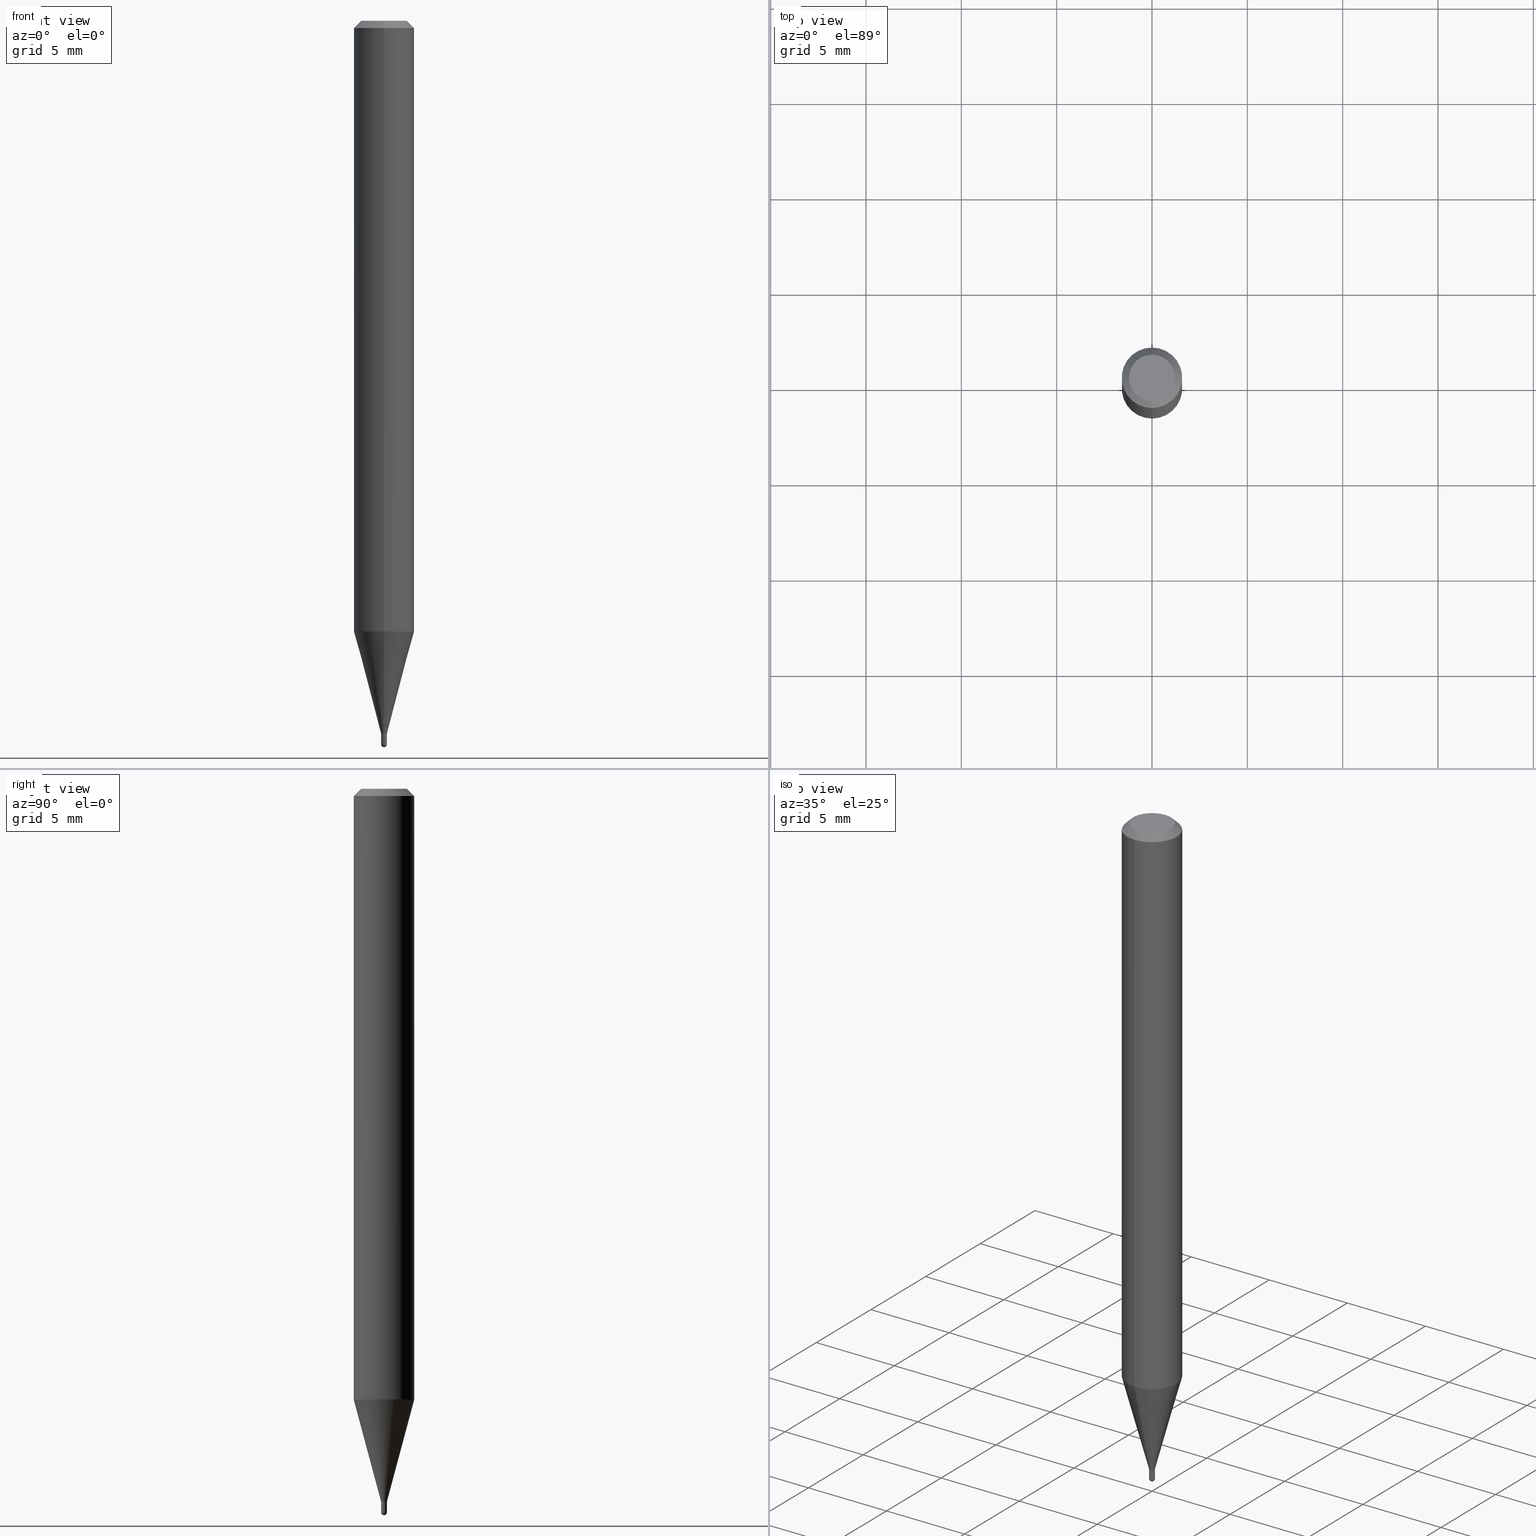
[diagram: canonical four-view strip — front | top / right | iso, engineering-drawing reading convention]
A machine part, canonical four-view strip (front | top / right | iso — engineering-drawing reading convention). The complete STEP part file that produces these views, byte-faithful:
ISO-10303-21;
HEADER;
FILE_DESCRIPTION (( 'STEP AP203' ),
    '1' );
FILE_NAME ('03073.STEP',
    '2024-03-08T18:06:15',
    ( '' ),
    ( '' ),
    'SwSTEP 2.0',
    'SolidWorks 2023',
    '' );
FILE_SCHEMA (( 'CONFIG_CONTROL_DESIGN' ));
ENDSEC;

DATA;
#1 = LINE ( 'NONE', #194, #245 ) ;
#2 = CARTESIAN_POINT ( 'NONE',  ( 3.599709425658781561E-29, -5.139490112842336246E-15, -1.471999999999999975 ) ) ;
#3 = APPROVAL_DATE_TIME ( #468, #249 ) ;
#4 = AXIS2_PLACEMENT_3D ( 'NONE', #208, #202, #378 ) ;
#5 = ORIENTED_EDGE ( 'NONE', *, *, #454, .T. ) ;
#6 = ORIENTED_EDGE ( 'NONE', *, *, #435, .T. ) ;
#7 = ADVANCED_FACE ( 'NONE', ( #237 ), #114, .T. ) ;
#8 = DIRECTION ( 'NONE',  ( 1.000000000000000000, -6.982962677686265922E-15, 4.883557194083112901E-29 ) ) ;
#9 = DIRECTION ( 'NONE',  ( -6.982962677686265922E-15, -1.000000000000000000, 3.491501435354847556E-15 ) ) ;
#10 = DIRECTION ( 'NONE',  ( -2.445454772866019838E-29, 3.491501435354847556E-15, 1.000000000000000000 ) ) ;
#11 = AXIS2_PLACEMENT_3D ( 'NONE', #39, #485, #120 ) ;
#12 = CARTESIAN_POINT ( 'NONE',  ( 3.599709425658781561E-29, -5.139490112842336246E-15, -1.471999999999999975 ) ) ;
#13 = DIRECTION ( 'NONE',  ( -6.982962677686265922E-15, -1.000000000000000000, 0.000000000000000000 ) ) ;
#14 = ORIENTED_EDGE ( 'NONE', *, *, #301, .T. ) ;
#15 = DIRECTION ( 'NONE',  ( 1.000000000000000000, -6.982962677686334553E-15, 0.000000000000000000 ) ) ;
#16 = CARTESIAN_POINT ( 'NONE',  ( -4.364351673553608545E-16, -0.06250000000000439926, -1.261139129372358614 ) ) ;
#17 = ORIENTED_EDGE ( 'NONE', *, *, #106, .F. ) ;
#18 = AXIS2_PLACEMENT_3D ( 'NONE', #103, #420, #462 ) ;
#19 = SECURITY_CLASSIFICATION ( '', '', #176 ) ;
#20 = PERSON_AND_ORGANIZATION ( #452, #134 ) ;
#21 = VERTEX_POINT ( 'NONE', #189 ) ;
#22 = EDGE_CURVE ( 'NONE', #186, #268, #336, .T. ) ;
#23 = MECHANICAL_CONTEXT ( 'NONE', #446, 'mechanical' ) ;
#24 = APPLICATION_PROTOCOL_DEFINITION ( 'international standard', 'config_control_design', 1994, #93 ) ;
#25 = CC_DESIGN_PERSON_AND_ORGANIZATION_ASSIGNMENT ( #389, #347, ( #59 ) ) ;
#26 = CIRCLE ( 'NONE', #76, 0.06250000000000000000 ) ;
#27 = ORIENTED_EDGE ( 'NONE', *, *, #407, .F. ) ;
#28 = CARTESIAN_POINT ( 'NONE',  ( 3.624163973387442011E-29, -5.174405127195883956E-15, -1.482000000000000206 ) ) ;
#29 = ORIENTED_EDGE ( 'NONE', *, *, #454, .F. ) ;
#30 = DIRECTION ( 'NONE',  ( -6.982962677686265922E-15, -1.000000000000000000, 0.000000000000000000 ) ) ;
#31 = ORIENTED_EDGE ( 'NONE', *, *, #128, .T. ) ;
#32 = EDGE_LOOP ( 'NONE', ( #400, #493, #360, #157 ) ) ;
#33 = AXIS2_PLACEMENT_3D ( 'NONE', #399, #328, #362 ) ;
#34 = EDGE_CURVE ( 'NONE', #183, #284, #466, .T. ) ;
#35 = CARTESIAN_POINT ( 'NONE',  ( -3.773273898774340269E-16, -0.04749999999999999362, 4.053359154515480659E-16 ) ) ;
#36 = CARTESIAN_POINT ( 'NONE',  ( 4.263256414560546353E-17, 0.005999999999999923797, -2.094900861212881974E-17 ) ) ;
#37 = FACE_OUTER_BOUND ( 'NONE', #278, .T. ) ;
#38 = VERTEX_POINT ( 'NONE', #229 ) ;
#39 = CARTESIAN_POINT ( 'NONE',  ( 3.622941246001009353E-29, -5.172659376478207044E-15, -1.481500000000000261 ) ) ;
#40 = DIRECTION ( 'NONE',  ( 1.839019923739599921E-15, 0.2588190451025249028, 0.9659258262890670910 ) ) ;
#41 = ORIENTED_EDGE ( 'NONE', *, *, #283, .T. ) ;
#42 = CYLINDRICAL_SURFACE ( 'NONE', #53, 0.06250000000000000000 ) ;
#43 = LINE ( 'NONE', #36, #144 ) ;
#44 = CARTESIAN_POINT ( 'NONE',  ( 3.624184770766373010E-29, -5.174375344165542471E-15, -1.482000000000000206 ) ) ;
#45 = EDGE_CURVE ( 'NONE', #337, #421, #306, .T. ) ;
#46 = DIRECTION ( 'NONE',  ( -2.445454772866020119E-29, 3.491501435354847556E-15, 1.000000000000000000 ) ) ;
#47 = LINE ( 'NONE', #410, #311 ) ;
#48 = ORIENTED_EDGE ( 'NONE', *, *, #374, .F. ) ;
#49 = ORIENTED_EDGE ( 'NONE', *, *, #435, .F. ) ;
#50 = CARTESIAN_POINT ( 'NONE',  ( 3.653530396440595201E-29, -5.216273120231661712E-15, -1.494000000000000439 ) ) ;
#51 = FACE_OUTER_BOUND ( 'NONE', #406, .T. ) ;
#52 = DIRECTION ( 'NONE',  ( 1.000000000000000000, 0.000000000000000000, 0.000000000000000000 ) ) ;
#53 = AXIS2_PLACEMENT_3D ( 'NONE', #373, #200, #248 ) ;
#54 = CARTESIAN_POINT ( 'NONE',  ( 4.364351673553919652E-16, 0.06249999999999995143, -0.01499999999999997863 ) ) ;
#55 = APPROVAL_STATUS ( 'not_yet_approved' ) ;
#56 = EDGE_LOOP ( 'NONE', ( #152, #213, #5, #161, #425 ) ) ;
#57 =( LENGTH_UNIT ( ) NAMED_UNIT ( * ) SI_UNIT ( $, .METRE. ) );
#58 = VECTOR ( 'NONE', #87, 39.37007874015748143 ) ;
#59 = PRODUCT_DEFINITION_FORMATION_WITH_SPECIFIED_SOURCE ( 'ANY', '', #233, .NOT_KNOWN. ) ;
#60 = EDGE_CURVE ( 'NONE', #183, #363, #366, .T. ) ;
#61 = ADVANCED_FACE ( 'NONE', ( #364 ), #72, .T. ) ;
#62 = CARTESIAN_POINT ( 'NONE',  ( 4.440892098500625669E-16, 0.06250000000000000000, -2.182188397096779722E-16 ) ) ;
#63 = DIRECTION ( 'NONE',  ( -4.851104656540964275E-15, -0.7071067811865500152, -0.7071067811865450192 ) ) ;
#64 = ADVANCED_FACE ( 'NONE', ( #68 ), #96, .T. ) ;
#65 = ORIENTED_EDGE ( 'NONE', *, *, #315, .F. ) ;
#66 = VECTOR ( 'NONE', #484, 39.37007874015748143 ) ;
#67 = CIRCLE ( 'NONE', #273, 0.005999999999999998390 ) ;
#68 = FACE_OUTER_BOUND ( 'NONE', #380, .T. ) ;
#69 = EDGE_LOOP ( 'NONE', ( #88, #361, #279, #353, #371 ) ) ;
#70 = ORIENTED_EDGE ( 'NONE', *, *, #393, .T. ) ;
#71 = EDGE_LOOP ( 'NONE', ( #287, #501, #14, #31 ) ) ;
#72 = CYLINDRICAL_SURFACE ( 'NONE', #127, 0.005999999999999998390 ) ;
#73 = VERTEX_POINT ( 'NONE', #436 ) ;
#74 = EDGE_CURVE ( 'NONE', #73, #415, #506, .T. ) ;
#75 = SPHERICAL_SURFACE ( 'NONE', #86, 0.005999999999999804101 ) ;
#76 = AXIS2_PLACEMENT_3D ( 'NONE', #206, #339, #121 ) ;
#77 = VECTOR ( 'NONE', #497, 39.37007874015748143 ) ;
#78 = FACE_OUTER_BOUND ( 'NONE', #110, .T. ) ;
#79 = CARTESIAN_POINT ( 'NONE',  ( 2.433608869978675634E-16, 0.005999999999994782944, -1.471999999999999975 ) ) ;
#80 = CARTESIAN_POINT ( 'NONE',  ( -3.840629472723821456E-17, -0.005500000000005173494, -1.482000000000000206 ) ) ;
#81 = ORIENTED_EDGE ( 'NONE', *, *, #74, .F. ) ;
#82 = CARTESIAN_POINT ( 'NONE',  ( 4.189777606615384004E-17, 0.005999999999994825445, -1.482000000000000206 ) ) ;
#83 = CARTESIAN_POINT ( 'NONE',  ( 3.624163973387442011E-29, -5.174405127195883956E-15, -1.482000000000000206 ) ) ;
#84 = CARTESIAN_POINT ( 'NONE',  ( 3.653530396440595201E-29, -5.216273120231661712E-15, -1.494000000000000439 ) ) ;
#85 = CIRCLE ( 'NONE', #151, 0.005999999999999923797 ) ;
#86 = AXIS2_PLACEMENT_3D ( 'NONE', #243, #8, #403 ) ;
#87 = DIRECTION ( 'NONE',  ( -4.937700262164674260E-15, -0.7071067811865632269, 0.7071067811865319186 ) ) ;
#88 = ORIENTED_EDGE ( 'NONE', *, *, #220, .T. ) ;
#89 = ADVANCED_FACE ( 'NONE', ( #236 ), #289, .T. ) ;
#90 = APPROVAL_DATE_TIME ( #271, #322 ) ;
#91 = APPROVAL_PERSON_ORGANIZATION ( #422, #249, #221 ) ;
#92 = ORIENTED_EDGE ( 'NONE', *, *, #301, .F. ) ;
#93 = APPLICATION_CONTEXT ( 'configuration controlled 3d designs of mechanical parts and assemblies' ) ;
#94 = DIRECTION ( 'NONE',  ( 1.000000000000000000, -6.982962677686332186E-15, 0.000000000000000000 ) ) ;
#95 = APPROVAL_STATUS ( 'not_yet_approved' ) ;
#96 = CONICAL_SURFACE ( 'NONE', #442, 0.005499999999999999681, 0.7853981633974739252 ) ;
#97 = LOCAL_TIME ( 13, 6, 15.00000000000000000, #276 ) ;
#98 = CARTESIAN_POINT ( 'NONE',  ( -4.287811248607203282E-16, -0.06250000000000005551, -0.01499999999999954321 ) ) ;
#99 = DIRECTION ( 'NONE',  ( -2.445454772866020119E-29, 3.491501435354847556E-15, 1.000000000000000000 ) ) ;
#100 = VERTEX_POINT ( 'NONE', #192 ) ;
#101 = CARTESIAN_POINT ( 'NONE',  ( 3.624184770766373010E-29, -5.174375344165542471E-15, -1.482000000000000206 ) ) ;
#102 = ORIENTED_EDGE ( 'NONE', *, *, #22, .F. ) ;
#103 = CARTESIAN_POINT ( 'NONE',  ( 3.653530396440595201E-29, -5.216273120231661712E-15, -1.494000000000000439 ) ) ;
#104 = AXIS2_PLACEMENT_3D ( 'NONE', #205, #259, #477 ) ;
#105 = CARTESIAN_POINT ( 'NONE',  ( -5.856609787010447440E-45, 8.361782726284154230E-31, 2.394895972721927438E-16 ) ) ;
#106 = EDGE_CURVE ( 'NONE', #186, #337, #1, .T. ) ;
#107 = DIRECTION ( 'NONE',  ( -2.445454772866020119E-29, 3.491501435354847556E-15, 1.000000000000000000 ) ) ;
#108 = EDGE_CURVE ( 'NONE', #38, #21, #358, .T. ) ;
#109 = CARTESIAN_POINT ( 'NONE',  ( 3.840629472727447874E-16, 0.04749999999999999362, 7.364327909283752044E-17 ) ) ;
#110 = EDGE_LOOP ( 'NONE', ( #398, #474, #148, #92 ) ) ;
#111 = MANIFOLD_SOLID_BREP ( 'Body-Move/Copy2[1]', #440 ) ;
#112 = ORIENTED_EDGE ( 'NONE', *, *, #424, .F. ) ;
#113 = CARTESIAN_POINT ( 'NONE',  ( 3.653017296667086671E-29, -5.217007908311148520E-15, -1.494000000000000217 ) ) ;
#114 = CONICAL_SURFACE ( 'NONE', #274, 0.005999999999999922930, 0.2617993877991502405 ) ;
#115 = AXIS2_PLACEMENT_3D ( 'NONE', #479, #46, #211 ) ;
#116 = DIRECTION ( 'NONE',  ( -2.445468806185136597E-29, 3.491481338843145583E-15, 1.000000000000000000 ) ) ;
#117 = EDGE_CURVE ( 'NONE', #284, #145, #147, .T. ) ;
#118 = ORIENTED_EDGE ( 'NONE', *, *, #285, .T. ) ;
#119 = DIRECTION ( 'NONE',  ( -6.982962677686265922E-15, -1.000000000000000000, 0.000000000000000000 ) ) ;
#120 = DIRECTION ( 'NONE',  ( -6.982962677686265922E-15, -1.000000000000000000, 0.000000000000000000 ) ) ;
#121 = DIRECTION ( 'NONE',  ( -6.982962677686265922E-15, -1.000000000000000000, 4.370956789862821150E-15 ) ) ;
#122 = ORIENTED_EDGE ( 'NONE', *, *, #407, .T. ) ;
#123 = DIRECTION ( 'NONE',  ( 2.438088387897960049E-29, -3.491481338843145188E-15, -1.000000000000000000 ) ) ;
#124 = DIRECTION ( 'NONE',  ( 6.982962677686265922E-15, 1.000000000000000000, -3.483106191921935554E-15 ) ) ;
#125 = CIRCLE ( 'NONE', #265, 0.006000000000000000125 ) ;
#126 = FACE_OUTER_BOUND ( 'NONE', #246, .T. ) ;
#127 = AXIS2_PLACEMENT_3D ( 'NONE', #319, #324, #508 ) ;
#128 = EDGE_CURVE ( 'NONE', #145, #284, #133, .T. ) ;
#129 = CARTESIAN_POINT ( 'NONE',  ( 3.907985046684174009E-17, 0.005499999999994825001, -1.482000000000000206 ) ) ;
#130 = APPROVAL_ROLE ( '' ) ;
#131 = CARTESIAN_POINT ( 'NONE',  ( 0.000000000000000000, 0.000000000000000000, 0.000000000000000000 ) ) ;
#132 = CALENDAR_DATE ( 2024, 8, 3 ) ;
#133 = CIRCLE ( 'NONE', #498, 0.06250000000000000000 ) ;
#134 = ORGANIZATION ( 'UNSPECIFIED', 'UNSPECIFIED', '' ) ;
#135 = CARTESIAN_POINT ( 'NONE',  ( 3.668182159298971253E-31, -5.237252153032187986E-17, -0.01499999999999976179 ) ) ;
#136 = PERSON_AND_ORGANIZATION ( #452, #134 ) ;
#137 = ORIENTED_EDGE ( 'NONE', *, *, #153, .T. ) ;
#138 = EDGE_LOOP ( 'NONE', ( #27, #70, #81, #298 ) ) ;
#139 = CARTESIAN_POINT ( 'NONE',  ( -0.006000000000000000125, -5.152691668052995253E-15, -1.482000000000000206 ) ) ;
#140 = DIRECTION ( 'NONE',  ( -2.445454772866020119E-29, 3.491501435354847556E-15, 1.000000000000000000 ) ) ;
#141 = PLANE ( 'NONE',  #472 ) ;
#142 = SHAPE_DEFINITION_REPRESENTATION ( #150, #149 ) ;
#143 = VERTEX_POINT ( 'NONE', #139 ) ;
#144 = VECTOR ( 'NONE', #10, 39.37007874015748143 ) ;
#145 = VERTEX_POINT ( 'NONE', #226 ) ;
#146 = ORIENTED_EDGE ( 'NONE', *, *, #423, .T. ) ;
#147 = CIRCLE ( 'NONE', #354, 0.06250000000000000000 ) ;
#148 = ORIENTED_EDGE ( 'NONE', *, *, #117, .T. ) ;
#149 = ADVANCED_BREP_SHAPE_REPRESENTATION ( '03073', ( #111, #320, #413 ), #491 ) ;
#150 = PRODUCT_DEFINITION_SHAPE ( 'NONE', 'NONE',  #455 ) ;
#151 = AXIS2_PLACEMENT_3D ( 'NONE', #486, #449, #335 ) ;
#152 = ORIENTED_EDGE ( 'NONE', *, *, #473, .F. ) ;
#153 = EDGE_CURVE ( 'NONE', #143, #21, #125, .T. ) ;
#154 = DIRECTION ( 'NONE',  ( 1.000000000000000000, -6.982962677686267499E-15, 4.876176775795935793E-29 ) ) ;
#155 = DIRECTION ( 'NONE',  ( 6.982962677686265922E-15, 1.000000000000000000, -3.491501435354847556E-15 ) ) ;
#156 = CARTESIAN_POINT ( 'NONE',  ( 4.263256414564183742E-17, 0.005999999999994684065, -1.494000000000000439 ) ) ;
#157 = ORIENTED_EDGE ( 'NONE', *, *, #299, .F. ) ;
#158 = CYLINDRICAL_SURFACE ( 'NONE', #390, 0.06250000000000000000 ) ;
#159 = LINE ( 'NONE', #377, #66 ) ;
#160 = VECTOR ( 'NONE', #379, 39.37007874015748143 ) ;
#161 = ORIENTED_EDGE ( 'NONE', *, *, #108, .T. ) ;
#162 = CARTESIAN_POINT ( 'NONE',  ( -3.840629472723821456E-17, -0.005500000000005173494, -1.482000000000000206 ) ) ;
#163 = DIRECTION ( 'NONE',  ( -2.445468806185136597E-29, 3.491481338843145583E-15, 1.000000000000000000 ) ) ;
#164 = UNCERTAINTY_MEASURE_WITH_UNIT (LENGTH_MEASURE( 1.000000000000000082E-05 ), #387, 'distance_accuracy_value', 'NONE');
#165 = DIRECTION ( 'NONE',  ( -2.445468806185136597E-29, 3.491481338843145583E-15, 1.000000000000000000 ) ) ;
#166 = ORIENTED_EDGE ( 'NONE', *, *, #388, .F. ) ;
#167 = DATE_AND_TIME ( #173, #391 ) ;
#168 = VECTOR ( 'NONE', #262, 39.37007874015748143 ) ;
#169 = ADVANCED_FACE ( 'NONE', ( #426 ), #141, .F. ) ;
#170 = ORIENTED_EDGE ( 'NONE', *, *, #489, .F. ) ;
#171 = PERSON_AND_ORGANIZATION_ROLE ( 'classification_officer' ) ;
#172 = CARTESIAN_POINT ( 'NONE',  ( 3.668182159298971253E-31, -5.237252153032187986E-17, -0.01499999999999976179 ) ) ;
#173 = CALENDAR_DATE ( 2024, 8, 3 ) ;
#174 = ORIENTED_EDGE ( 'NONE', *, *, #128, .F. ) ;
#175 = EDGE_CURVE ( 'NONE', #268, #421, #280, .T. ) ;
#176 = SECURITY_CLASSIFICATION_LEVEL ( 'unclassified' ) ;
#177 = EDGE_CURVE ( 'NONE', #363, #183, #223, .T. ) ;
#178 = CIRCLE ( 'NONE', #4, 0.005499999999999999681 ) ;
#179 = LOCAL_TIME ( 13, 6, 15.00000000000000000, #500 ) ;
#180 = DIRECTION ( 'NONE',  ( -2.445454772866020119E-29, 3.491501435354847556E-15, 1.000000000000000000 ) ) ;
#181 = VECTOR ( 'NONE', #63, 39.37007874015748143 ) ;
#182 = APPROVAL_ROLE ( '' ) ;
#183 = VERTEX_POINT ( 'NONE', #35 ) ;
#184 = DIRECTION ( 'NONE',  ( -2.445454772866020119E-29, 3.491501435354847556E-15, 1.000000000000000000 ) ) ;
#185 = AXIS2_PLACEMENT_3D ( 'NONE', #113, #370, #482 ) ;
#186 = VERTEX_POINT ( 'NONE', #332 ) ;
#187 = CARTESIAN_POINT ( 'NONE',  ( 3.653017296667086671E-29, -5.217007908311148520E-15, -1.494000000000000217 ) ) ;
#188 = AXIS2_PLACEMENT_3D ( 'NONE', #252, #338, #154 ) ;
#189 = CARTESIAN_POINT ( 'NONE',  ( 0.006000000000000000125, -5.216273120231660134E-15, -1.482000000000000206 ) ) ;
#190 = AXIS2_PLACEMENT_3D ( 'NONE', #240, #438, #470 ) ;
#191 = CARTESIAN_POINT ( 'NONE',  ( 3.599709425658781561E-29, -5.139490112842336246E-15, -1.471999999999999975 ) ) ;
#192 = CARTESIAN_POINT ( 'NONE',  ( -4.189777606608096285E-17, -0.006000000000005115824, -1.481500000000000261 ) ) ;
#193 = EDGE_LOOP ( 'NONE', ( #204, #313 ) ) ;
#194 = CARTESIAN_POINT ( 'NONE',  ( -4.189777606608106146E-17, -0.006000000000005062048, -1.471999999999999975 ) ) ;
#195 = DIRECTION ( 'NONE',  ( -2.445454772866020119E-29, 3.491501435354847556E-15, 1.000000000000000000 ) ) ;
#196 = ADVANCED_FACE ( 'NONE', ( #37 ), #431, .T. ) ;
#197 = ORIENTED_EDGE ( 'NONE', *, *, #267, .F. ) ;
#198 = DIRECTION ( 'NONE',  ( -1.807323732225329745E-15, -0.2588190451025181305, 0.9659258262890689783 ) ) ;
#199 = AXIS2_PLACEMENT_3D ( 'NONE', #172, #451, #124 ) ;
#200 = DIRECTION ( 'NONE',  ( -2.445454772866020119E-29, 3.491501435354847556E-15, 1.000000000000000000 ) ) ;
#201 = CLOSED_SHELL ( 'NONE', ( #258, #64, #453, #417, #219, #7, #275, #234, #290, #169, #196, #357 ) ) ;
#202 = DIRECTION ( 'NONE',  ( -2.445454772866020119E-29, 3.491501435354847556E-15, 1.000000000000000000 ) ) ;
#203 = DIRECTION ( 'NONE',  ( -2.445454772866020119E-29, 3.491501435354847556E-15, 1.000000000000000000 ) ) ;
#204 = ORIENTED_EDGE ( 'NONE', *, *, #177, .T. ) ;
#205 = CARTESIAN_POINT ( 'NONE',  ( 3.653017296667086671E-29, -5.217007908311148520E-15, -1.494000000000000217 ) ) ;
#206 = CARTESIAN_POINT ( 'NONE',  ( 3.084058703171732216E-29, -4.403269080385753403E-15, -1.261139129372358836 ) ) ;
#207 = VERTEX_POINT ( 'NONE', #156 ) ;
#208 = CARTESIAN_POINT ( 'NONE',  ( 3.624163973387442011E-29, -5.174405127195883956E-15, -1.482000000000000206 ) ) ;
#209 = AXIS2_PLACEMENT_3D ( 'NONE', #191, #510, #469 ) ;
#210 = CC_DESIGN_APPROVAL ( #302, ( #59 ) ) ;
#211 = DIRECTION ( 'NONE',  ( -6.982962677686265922E-15, -1.000000000000000000, 3.491501435354847556E-15 ) ) ;
#212 = LINE ( 'NONE', #54, #160 ) ;
#213 = ORIENTED_EDGE ( 'NONE', *, *, #74, .T. ) ;
#214 = CARTESIAN_POINT ( 'NONE',  ( 4.440892098500932831E-16, 0.06249999999999558686, -1.261139129372359058 ) ) ;
#215 = EDGE_CURVE ( 'NONE', #421, #145, #487, .T. ) ;
#216 = CARTESIAN_POINT ( 'NONE',  ( 0.000000000000000000, 0.000000000000000000, 0.000000000000000000 ) ) ;
#217 = APPLICATION_PROTOCOL_DEFINITION ( 'international standard', 'config_control_design', 1994, #446 ) ;
#218 = VECTOR ( 'NONE', #40, 39.37007874015748143 ) ;
#219 = ADVANCED_FACE ( 'NONE', ( #394 ), #253, .T. ) ;
#220 = EDGE_CURVE ( 'NONE', #207, #73, #490, .T. ) ;
#221 = APPROVAL_ROLE ( '' ) ;
#222 = COORDINATED_UNIVERSAL_TIME_OFFSET ( 5, 0, .BEHIND. ) ;
#223 = CIRCLE ( 'NONE', #505, 0.04749999999999999362 ) ;
#224 = AXIS2_PLACEMENT_3D ( 'NONE', #356, #232, #395 ) ;
#225 = PERSON_AND_ORGANIZATION ( #452, #134 ) ;
#226 = CARTESIAN_POINT ( 'NONE',  ( 4.440892098500935790E-16, 0.06249999999999995143, -0.01499999999999997863 ) ) ;
#227 = DIRECTION ( 'NONE',  ( -6.982962677686265922E-15, -1.000000000000000000, 3.483106191921935554E-15 ) ) ;
#228 = ORIENTED_EDGE ( 'NONE', *, *, #256, .F. ) ;
#229 = CARTESIAN_POINT ( 'NONE',  ( 0.005999999999999998390, -5.237222008264720543E-15, -1.494000000000000439 ) ) ;
#230 = DIRECTION ( 'NONE',  ( -2.445454772866019838E-29, 3.491501435354847556E-15, 1.000000000000000000 ) ) ;
#231 = DIRECTION ( 'NONE',  ( -6.982962677686265922E-15, -1.000000000000000000, 0.000000000000000000 ) ) ;
#232 = DIRECTION ( 'NONE',  ( -2.445454772866020119E-29, 3.491501435354847556E-15, 1.000000000000000000 ) ) ;
#233 = PRODUCT ( '03073', '03073', '', ( #23 ) ) ;
#234 = ADVANCED_FACE ( 'NONE', ( #235 ), #456, .T. ) ;
#235 = FACE_OUTER_BOUND ( 'NONE', #71, .T. ) ;
#236 = FACE_OUTER_BOUND ( 'NONE', #138, .T. ) ;
#237 = FACE_OUTER_BOUND ( 'NONE', #32, .T. ) ;
#238 = ORIENTED_EDGE ( 'NONE', *, *, #256, .T. ) ;
#239 = DIRECTION ( 'NONE',  ( -6.982962677686266711E-15, -1.000000000000000000, 3.491501435354848345E-15 ) ) ;
#240 = CARTESIAN_POINT ( 'NONE',  ( 3.653530396440595201E-29, -5.216273120231661712E-15, -1.494000000000000439 ) ) ;
#241 = EDGE_LOOP ( 'NONE', ( #329, #318, #386, #369 ) ) ;
#242 = ORIENTED_EDGE ( 'NONE', *, *, #401, .F. ) ;
#243 = CARTESIAN_POINT ( 'NONE',  ( 3.653017296667086671E-29, -5.217007908311148520E-15, -1.494000000000000217 ) ) ;
#244 = LOCAL_TIME ( 13, 6, 15.00000000000000000, #264 ) ;
#245 = VECTOR ( 'NONE', #198, 39.37007874015748143 ) ;
#246 = EDGE_LOOP ( 'NONE', ( #118, #137 ) ) ;
#247 = CARTESIAN_POINT ( 'NONE',  ( -0.005999999999999998390, 4.263256414560599971E-17, -2.951361054152943063E-31 ) ) ;
#248 = DIRECTION ( 'NONE',  ( -6.982962677686265922E-15, -1.000000000000000000, 3.491501435354847556E-15 ) ) ;
#249 = APPROVAL ( #55, 'UNSPECIFIED' ) ;
#250 = ORIENTED_EDGE ( 'NONE', *, *, #388, .T. ) ;
#251 = CARTESIAN_POINT ( 'NONE',  ( 4.085620730624171480E-17, 0.005499999999994825001, -1.482000000000000206 ) ) ;
#252 = CARTESIAN_POINT ( 'NONE',  ( 0.000000000000000000, 0.000000000000000000, 0.000000000000000000 ) ) ;
#253 = CONICAL_SURFACE ( 'NONE', #209, 0.005999999999999922930, 0.2617993877991502405 ) ;
#254 = CIRCLE ( 'NONE', #11, 0.005999999999999923797 ) ;
#255 = VERTEX_POINT ( 'NONE', #303 ) ;
#256 = EDGE_CURVE ( 'NONE', #475, #512, #448, .T. ) ;
#257 = CYLINDRICAL_SURFACE ( 'NONE', #272, 0.005999999999999923797 ) ;
#258 = ADVANCED_FACE ( 'NONE', ( #51 ), #257, .T. ) ;
#259 = DIRECTION ( 'NONE',  ( -1.000000000000000000, 6.982962677686265922E-15, -4.883557194083112340E-29 ) ) ;
#260 = CC_DESIGN_PERSON_AND_ORGANIZATION_ASSIGNMENT ( #136, #171, ( #19 ) ) ;
#261 = DESIGN_CONTEXT ( 'detailed design', #93, 'design' ) ;
#262 = DIRECTION ( 'NONE',  ( 5.024295867788190974E-15, 0.7071067811865681119, 0.7071067811865270336 ) ) ;
#263 = PERSON_AND_ORGANIZATION_ROLE ( 'design_owner' ) ;
#264 = COORDINATED_UNIVERSAL_TIME_OFFSET ( 5, 0, .BEHIND. ) ;
#265 = AXIS2_PLACEMENT_3D ( 'NONE', #101, #460, #94 ) ;
#266 = LOCAL_TIME ( 13, 6, 15.00000000000000000, #495 ) ;
#267 = EDGE_CURVE ( 'NONE', #471, #475, #464, .T. ) ;
#268 = VERTEX_POINT ( 'NONE', #79 ) ;
#269 = DATE_TIME_ROLE ( 'classification_date' ) ;
#270 = APPROVAL_STATUS ( 'not_yet_approved' ) ;
#271 = DATE_AND_TIME ( #461, #179 ) ;
#272 = AXIS2_PLACEMENT_3D ( 'NONE', #216, #99, #9 ) ;
#273 = AXIS2_PLACEMENT_3D ( 'NONE', #50, #116, #15 ) ;
#274 = AXIS2_PLACEMENT_3D ( 'NONE', #325, #184, #30 ) ;
#275 = ADVANCED_FACE ( 'NONE', ( #408 ), #42, .T. ) ;
#276 = COORDINATED_UNIVERSAL_TIME_OFFSET ( 5, 0, .BEHIND. ) ;
#277 = EDGE_LOOP ( 'NONE', ( #288, #404, #41, #174 ) ) ;
#278 = EDGE_LOOP ( 'NONE', ( #228, #434, #6, #496 ) ) ;
#279 = ORIENTED_EDGE ( 'NONE', *, *, #285, .F. ) ;
#280 = LINE ( 'NONE', #323, #218 ) ;
#281 = DIRECTION ( 'NONE',  ( -6.982962677686265922E-15, -1.000000000000000000, 0.000000000000000000 ) ) ;
#282 = DIRECTION ( 'NONE',  ( 1.000000000000000000, -6.982962677686332186E-15, 0.000000000000000000 ) ) ;
#283 = EDGE_CURVE ( 'NONE', #337, #284, #159, .T. ) ;
#284 = VERTEX_POINT ( 'NONE', #296 ) ;
#285 = EDGE_CURVE ( 'NONE', #21, #143, #333, .T. ) ;
#286 = AXIS2_PLACEMENT_3D ( 'NONE', #82, #123, #300 ) ;
#287 = ORIENTED_EDGE ( 'NONE', *, *, #34, .F. ) ;
#288 = ORIENTED_EDGE ( 'NONE', *, *, #215, .F. ) ;
#289 = SPHERICAL_SURFACE ( 'NONE', #402, 0.005999999999999804101 ) ;
#290 = ADVANCED_FACE ( 'NONE', ( #430 ), #397, .F. ) ;
#291 = FACE_OUTER_BOUND ( 'NONE', #241, .T. ) ;
#292 = FACE_OUTER_BOUND ( 'NONE', #352, .T. ) ;
#293 = CC_DESIGN_PERSON_AND_ORGANIZATION_ASSIGNMENT ( #492, #263, ( #233 ) ) ;
#294 = DIRECTION ( 'NONE',  ( -2.445454772866020119E-29, 3.491501435354847556E-15, 1.000000000000000000 ) ) ;
#295 = DIRECTION ( 'NONE',  ( 6.982962677686265922E-15, 1.000000000000000000, -3.483106191921935554E-15 ) ) ;
#296 = CARTESIAN_POINT ( 'NONE',  ( -4.364351673553912750E-16, -0.06250000000000005551, -0.01499999999999954321 ) ) ;
#297 = DIRECTION ( 'NONE',  ( -2.445454772866020119E-29, 3.491501435354847556E-15, 1.000000000000000000 ) ) ;
#298 = ORIENTED_EDGE ( 'NONE', *, *, #220, .F. ) ;
#299 = EDGE_CURVE ( 'NONE', #421, #337, #26, .T. ) ;
#300 = DIRECTION ( 'NONE',  ( -1.000000000000000000, 6.982962677686265922E-15, -4.876176775795935793E-29 ) ) ;
#301 = EDGE_CURVE ( 'NONE', #363, #145, #212, .T. ) ;
#302 = APPROVAL ( #270, 'UNSPECIFIED' ) ;
#303 = CARTESIAN_POINT ( 'NONE',  ( 3.667433559617442941E-29, -5.238324190383951544E-15, -1.500000000000000222 ) ) ;
#304 = CARTESIAN_POINT ( 'NONE',  ( 4.263256414564155392E-17, 0.005999999999994732637, -1.481500000000000261 ) ) ;
#305 = AXIS2_PLACEMENT_3D ( 'NONE', #12, #368, #13 ) ;
#306 = CIRCLE ( 'NONE', #224, 0.06250000000000000000 ) ;
#307 = PLANE ( 'NONE',  #286 ) ;
#308 = APPROVAL_DATE_TIME ( #167, #302 ) ;
#309 = ORIENTED_EDGE ( 'NONE', *, *, #45, .F. ) ;
#310 =( NAMED_UNIT ( * ) SI_UNIT ( $, .STERADIAN. ) SOLID_ANGLE_UNIT ( ) );
#311 = VECTOR ( 'NONE', #494, 39.37007874015748143 ) ;
#312 = CONICAL_SURFACE ( 'NONE', #365, 0.06250000000000000000, 0.7853981633974483900 ) ;
#313 = ORIENTED_EDGE ( 'NONE', *, *, #60, .T. ) ;
#314 = PERSON_AND_ORGANIZATION_ROLE ( 'creator' ) ;
#315 = EDGE_CURVE ( 'NONE', #100, #186, #47, .T. ) ;
#316 = DIMENSIONAL_EXPONENTS ( 1.000000000000000000, 0.000000000000000000, 0.000000000000000000, 0.000000000000000000, 0.000000000000000000, 0.000000000000000000, 0.000000000000000000 ) ;
#317 = AXIS2_PLACEMENT_3D ( 'NONE', #44, #163, #282 ) ;
#318 = ORIENTED_EDGE ( 'NONE', *, *, #215, .T. ) ;
#319 = CARTESIAN_POINT ( 'NONE',  ( 0.000000000000000000, 0.000000000000000000, 0.000000000000000000 ) ) ;
#320 = MANIFOLD_SOLID_BREP ( 'Body-Move/Copy2[2]', #201 ) ;
#321 = CARTESIAN_POINT ( 'NONE',  ( 3.316907271900976096E-16, 0.04749999999999999362, -4.610151954325886381E-17 ) ) ;
#322 = APPROVAL ( #95, 'UNSPECIFIED' ) ;
#323 = CARTESIAN_POINT ( 'NONE',  ( 4.263256414564144915E-17, 0.005999999999994783811, -1.471999999999999975 ) ) ;
#324 = DIRECTION ( 'NONE',  ( -2.445468806185136597E-29, 3.491481338843145583E-15, 1.000000000000000000 ) ) ;
#325 = CARTESIAN_POINT ( 'NONE',  ( 3.599709425658781561E-29, -5.139490112842336246E-15, -1.471999999999999975 ) ) ;
#326 = EDGE_LOOP ( 'NONE', ( #197, #242 ) ) ;
#327 = LINE ( 'NONE', #247, #375 ) ;
#328 = DIRECTION ( 'NONE',  ( -2.445454772866020119E-29, 3.491501435354847556E-15, 1.000000000000000000 ) ) ;
#329 = ORIENTED_EDGE ( 'NONE', *, *, #45, .T. ) ;
#330 = CC_DESIGN_PERSON_AND_ORGANIZATION_ASSIGNMENT ( #225, #314, ( #455 ) ) ;
#331 = CYLINDRICAL_SURFACE ( 'NONE', #188, 0.005999999999999998390 ) ;
#332 = CARTESIAN_POINT ( 'NONE',  ( -4.189777606608106146E-17, -0.006000000000005062048, -1.471999999999999975 ) ) ;
#333 = CIRCLE ( 'NONE', #317, 0.006000000000000000125 ) ;
#334 = APPROVAL_PERSON_ORGANIZATION ( #384, #322, #130 ) ;
#335 = DIRECTION ( 'NONE',  ( -6.982962677686265922E-15, -1.000000000000000000, 0.000000000000000000 ) ) ;
#336 = CIRCLE ( 'NONE', #450, 0.005999999999999922930 ) ;
#337 = VERTEX_POINT ( 'NONE', #16 ) ;
#338 = DIRECTION ( 'NONE',  ( -2.445468806185136597E-29, 3.491481338843145583E-15, 1.000000000000000000 ) ) ;
#339 = DIRECTION ( 'NONE',  ( -2.445454772866020119E-29, 3.491501435354847556E-15, 1.000000000000000000 ) ) ;
#340 = ORIENTED_EDGE ( 'NONE', *, *, #393, .F. ) ;
#341 = CC_DESIGN_DATE_AND_TIME_ASSIGNMENT ( #427, #392, ( #455 ) ) ;
#342 = LINE ( 'NONE', #162, #58 ) ;
#343 =( NAMED_UNIT ( * ) PLANE_ANGLE_UNIT ( ) SI_UNIT ( $, .RADIAN. ) );
#344 = VECTOR ( 'NONE', #230, 39.37007874015748143 ) ;
#345 = PERSON_AND_ORGANIZATION ( #452, #134 ) ;
#346 = CC_DESIGN_DATE_AND_TIME_ASSIGNMENT ( #457, #269, ( #19 ) ) ;
#347 = PERSON_AND_ORGANIZATION_ROLE ( 'creator' ) ;
#348 = APPROVAL_PERSON_ORGANIZATION ( #20, #302, #182 ) ;
#349 = DIRECTION ( 'NONE',  ( -6.982962677686265922E-15, -1.000000000000000000, 3.483106191921935554E-15 ) ) ;
#350 = CALENDAR_DATE ( 2024, 8, 3 ) ;
#351 = ADVANCED_FACE ( 'NONE', ( #126 ), #307, .F. ) ;
#352 = EDGE_LOOP ( 'NONE', ( #166, #146, #437, #112 ) ) ;
#353 = ORIENTED_EDGE ( 'NONE', *, *, #108, .F. ) ;
#354 = AXIS2_PLACEMENT_3D ( 'NONE', #135, #180, #349 ) ;
#355 = DIRECTION ( 'NONE',  ( -2.445454772866019558E-29, 3.491501435354847556E-15, 1.000000000000000000 ) ) ;
#356 = CARTESIAN_POINT ( 'NONE',  ( 3.084058703171732216E-29, -4.403269080385753403E-15, -1.261139129372358836 ) ) ;
#357 = ADVANCED_FACE ( 'NONE', ( #292 ), #416, .T. ) ;
#358 = LINE ( 'NONE', #511, #77 ) ;
#359 = DIRECTION ( 'NONE',  ( -6.982962677686266711E-15, -1.000000000000000000, 3.491501435354848345E-15 ) ) ;
#360 = ORIENTED_EDGE ( 'NONE', *, *, #106, .T. ) ;
#361 = ORIENTED_EDGE ( 'NONE', *, *, #473, .T. ) ;
#362 = DIRECTION ( 'NONE',  ( -6.982962677686265922E-15, -1.000000000000000000, 0.000000000000000000 ) ) ;
#363 = VERTEX_POINT ( 'NONE', #109 ) ;
#364 = FACE_OUTER_BOUND ( 'NONE', #56, .T. ) ;
#365 = AXIS2_PLACEMENT_3D ( 'NONE', #445, #381, #295 ) ;
#366 = CIRCLE ( 'NONE', #428, 0.04749999999999999362 ) ;
#367 = PRODUCT_RELATED_PRODUCT_CATEGORY ( 'detail', '', ( #233 ) ) ;
#368 = DIRECTION ( 'NONE',  ( -2.445454772866020119E-29, 3.491501435354847556E-15, 1.000000000000000000 ) ) ;
#369 = ORIENTED_EDGE ( 'NONE', *, *, #283, .F. ) ;
#370 = DIRECTION ( 'NONE',  ( 1.000000000000000000, -7.105427357601001070E-15, 4.926315508542082329E-29 ) ) ;
#371 = ORIENTED_EDGE ( 'NONE', *, *, #374, .T. ) ;
#372 = AXIS2_PLACEMENT_3D ( 'NONE', #83, #294, #119 ) ;
#373 = CARTESIAN_POINT ( 'NONE',  ( 0.000000000000000000, 0.000000000000000000, 0.000000000000000000 ) ) ;
#374 = EDGE_CURVE ( 'NONE', #38, #207, #385, .T. ) ;
#375 = VECTOR ( 'NONE', #405, 39.37007874015748143 ) ;
#376 = CARTESIAN_POINT ( 'NONE',  ( -4.189777606608037121E-17, -0.006000000000005118427, -1.494000000000000439 ) ) ;
#377 = CARTESIAN_POINT ( 'NONE',  ( -4.364351673553916201E-16, -0.06250000000000000000, 2.182188397096779722E-16 ) ) ;
#378 = DIRECTION ( 'NONE',  ( -6.982962677686265922E-15, -1.000000000000000000, 0.000000000000000000 ) ) ;
#379 = DIRECTION ( 'NONE',  ( 4.937700262164548042E-15, 0.7071067811865451302, -0.7071067811865499042 ) ) ;
#380 = EDGE_LOOP ( 'NONE', ( #382, #238, #170, #49 ) ) ;
#381 = DIRECTION ( 'NONE',  ( 2.445454772866020119E-29, -3.491501435354847556E-15, -1.000000000000000000 ) ) ;
#382 = ORIENTED_EDGE ( 'NONE', *, *, #267, .T. ) ;
#383 = ADVANCED_FACE ( 'NONE', ( #444 ), #331, .T. ) ;
#384 = PERSON_AND_ORGANIZATION ( #452, #134 ) ;
#385 = CIRCLE ( 'NONE', #412, 0.005999999999999998390 ) ;
#386 = ORIENTED_EDGE ( 'NONE', *, *, #117, .F. ) ;
#387 =( CONVERSION_BASED_UNIT ( 'INCH', #459 ) LENGTH_UNIT ( ) NAMED_UNIT ( #316 ) );
#388 = EDGE_CURVE ( 'NONE', #512, #268, #43, .T. ) ;
#389 = PERSON_AND_ORGANIZATION ( #452, #134 ) ;
#390 = AXIS2_PLACEMENT_3D ( 'NONE', #409, #297, #443 ) ;
#391 = LOCAL_TIME ( 13, 6, 15.00000000000000000, #222 ) ;
#392 = DATE_TIME_ROLE ( 'creation_date' ) ;
#393 = EDGE_CURVE ( 'NONE', #255, #415, #441, .T. ) ;
#394 = FACE_OUTER_BOUND ( 'NONE', #478, .T. ) ;
#395 = DIRECTION ( 'NONE',  ( -6.982962677686265922E-15, -1.000000000000000000, 4.370956789862821150E-15 ) ) ;
#396 = AXIS2_PLACEMENT_3D ( 'NONE', #321, #483, #155 ) ;
#397 = PLANE ( 'NONE',  #396 ) ;
#398 = ORIENTED_EDGE ( 'NONE', *, *, #60, .F. ) ;
#399 = CARTESIAN_POINT ( 'NONE',  ( 3.624163973387442011E-29, -5.174405127195883956E-15, -1.482000000000000206 ) ) ;
#400 = ORIENTED_EDGE ( 'NONE', *, *, #175, .F. ) ;
#401 = EDGE_CURVE ( 'NONE', #475, #471, #178, .T. ) ;
#402 = AXIS2_PLACEMENT_3D ( 'NONE', #187, #467, #231 ) ;
#403 = DIRECTION ( 'NONE',  ( -6.982962677686265922E-15, -1.000000000000000000, 0.000000000000000000 ) ) ;
#404 = ORIENTED_EDGE ( 'NONE', *, *, #299, .T. ) ;
#405 = DIRECTION ( 'NONE',  ( -2.445468806185136877E-29, 3.491481338843145188E-15, 1.000000000000000000 ) ) ;
#406 = EDGE_LOOP ( 'NONE', ( #480, #250, #102, #65 ) ) ;
#407 = EDGE_CURVE ( 'NONE', #255, #207, #481, .T. ) ;
#408 = FACE_OUTER_BOUND ( 'NONE', #277, .T. ) ;
#409 = CARTESIAN_POINT ( 'NONE',  ( 0.000000000000000000, 0.000000000000000000, 0.000000000000000000 ) ) ;
#410 = CARTESIAN_POINT ( 'NONE',  ( -4.189777606611706556E-17, -0.005999999999999923797, 2.094900861212881974E-17 ) ) ;
#411 = ORIENTED_EDGE ( 'NONE', *, *, #175, .T. ) ;
#412 = AXIS2_PLACEMENT_3D ( 'NONE', #84, #165, #414 ) ;
#413 = AXIS2_PLACEMENT_3D ( 'NONE', #131, #419, #52 ) ;
#414 = DIRECTION ( 'NONE',  ( 1.000000000000000000, -6.982962677686334553E-15, 0.000000000000000000 ) ) ;
#415 = VERTEX_POINT ( 'NONE', #376 ) ;
#416 = CYLINDRICAL_SURFACE ( 'NONE', #115, 0.005999999999999923797 ) ;
#417 = ADVANCED_FACE ( 'NONE', ( #291 ), #158, .T. ) ;
#418 = PERSON_AND_ORGANIZATION_ROLE ( 'design_supplier' ) ;
#419 = DIRECTION ( 'NONE',  ( 0.000000000000000000, 0.000000000000000000, 1.000000000000000000 ) ) ;
#420 = DIRECTION ( 'NONE',  ( -2.445468806185136597E-29, 3.491481338843145583E-15, 1.000000000000000000 ) ) ;
#421 = VERTEX_POINT ( 'NONE', #214 ) ;
#422 = PERSON_AND_ORGANIZATION ( #452, #134 ) ;
#423 = EDGE_CURVE ( 'NONE', #512, #100, #85, .T. ) ;
#424 = EDGE_CURVE ( 'NONE', #268, #186, #447, .T. ) ;
#425 = ORIENTED_EDGE ( 'NONE', *, *, #153, .F. ) ;
#426 = FACE_OUTER_BOUND ( 'NONE', #326, .T. ) ;
#427 = DATE_AND_TIME ( #350, #244 ) ;
#428 = AXIS2_PLACEMENT_3D ( 'NONE', #509, #433, #359 ) ;
#429 = DIRECTION ( 'NONE',  ( -6.982962677686265922E-15, -1.000000000000000000, 0.000000000000000000 ) ) ;
#430 = FACE_OUTER_BOUND ( 'NONE', #193, .T. ) ;
#431 = CONICAL_SURFACE ( 'NONE', #33, 0.005499999999999999681, 0.7853981633974739252 ) ;
#432 = CC_DESIGN_APPROVAL ( #322, ( #455 ) ) ;
#433 = DIRECTION ( 'NONE',  ( -2.445454772866020119E-29, 3.491501435354847556E-15, 1.000000000000000000 ) ) ;
#434 = ORIENTED_EDGE ( 'NONE', *, *, #401, .T. ) ;
#435 = EDGE_CURVE ( 'NONE', #471, #100, #342, .T. ) ;
#436 = CARTESIAN_POINT ( 'NONE',  ( -0.005999999999999998390, -5.152691668052995253E-15, -1.494000000000000439 ) ) ;
#437 = ORIENTED_EDGE ( 'NONE', *, *, #315, .T. ) ;
#438 = DIRECTION ( 'NONE',  ( -2.445468806185136597E-29, 3.491481338843145583E-15, 1.000000000000000000 ) ) ;
#439 = FACE_OUTER_BOUND ( 'NONE', #488, .T. ) ;
#440 = CLOSED_SHELL ( 'NONE', ( #383, #502, #351, #89, #61 ) ) ;
#441 = CIRCLE ( 'NONE', #104, 0.005999999999999804101 ) ;
#442 = AXIS2_PLACEMENT_3D ( 'NONE', #476, #107, #281 ) ;
#443 = DIRECTION ( 'NONE',  ( -6.982962677686265922E-15, -1.000000000000000000, 3.491501435354847556E-15 ) ) ;
#444 = FACE_OUTER_BOUND ( 'NONE', #69, .T. ) ;
#445 = CARTESIAN_POINT ( 'NONE',  ( 3.668182159298971253E-31, -5.237252153032187986E-17, -0.01499999999999976179 ) ) ;
#446 = APPLICATION_CONTEXT ( 'configuration controlled 3d designs of mechanical parts and assemblies' ) ;
#447 = CIRCLE ( 'NONE', #305, 0.005999999999999922930 ) ;
#448 = LINE ( 'NONE', #129, #168 ) ;
#449 = DIRECTION ( 'NONE',  ( -2.445454772866020119E-29, 3.491501435354847556E-15, 1.000000000000000000 ) ) ;
#450 = AXIS2_PLACEMENT_3D ( 'NONE', #2, #195, #429 ) ;
#451 = DIRECTION ( 'NONE',  ( 2.445454772866020119E-29, -3.491501435354847556E-15, -1.000000000000000000 ) ) ;
#452 = PERSON ( 'UNSPECIFIED', 'UNSPECIFIED', 'UNSPECIFIED', ('UNSPECIFIED'), ('UNSPECIFIED'), ('UNSPECIFIED') ) ;
#453 = ADVANCED_FACE ( 'NONE', ( #78 ), #312, .T. ) ;
#454 = EDGE_CURVE ( 'NONE', #415, #38, #67, .T. ) ;
#455 = PRODUCT_DEFINITION ( 'UNKNOWN', '', #59, #261 ) ;
#456 = CONICAL_SURFACE ( 'NONE', #199, 0.06250000000000000000, 0.7853981633974483900 ) ;
#457 = DATE_AND_TIME ( #132, #266 ) ;
#458 = CC_DESIGN_SECURITY_CLASSIFICATION ( #19, ( #59 ) ) ;
#459 = LENGTH_MEASURE_WITH_UNIT ( LENGTH_MEASURE( 0.02539999999999999897 ), #57 );
#460 = DIRECTION ( 'NONE',  ( -2.445468806185136597E-29, 3.491481338843145583E-15, 1.000000000000000000 ) ) ;
#461 = CALENDAR_DATE ( 2024, 8, 3 ) ;
#462 = DIRECTION ( 'NONE',  ( 1.000000000000000000, -6.982962677686334553E-15, 0.000000000000000000 ) ) ;
#463 = ORIENTED_EDGE ( 'NONE', *, *, #22, .T. ) ;
#464 = CIRCLE ( 'NONE', #372, 0.005499999999999999681 ) ;
#465 = CC_DESIGN_APPROVAL ( #249, ( #19 ) ) ;
#466 = LINE ( 'NONE', #98, #181 ) ;
#467 = DIRECTION ( 'NONE',  ( 1.000000000000000000, -6.982962677686265922E-15, 4.883557194083112901E-29 ) ) ;
#468 = DATE_AND_TIME ( #503, #97 ) ;
#469 = DIRECTION ( 'NONE',  ( -6.982962677686265922E-15, -1.000000000000000000, 0.000000000000000000 ) ) ;
#470 = DIRECTION ( 'NONE',  ( 1.000000000000000000, -6.982962677686334553E-15, 0.000000000000000000 ) ) ;
#471 = VERTEX_POINT ( 'NONE', #80 ) ;
#472 = AXIS2_PLACEMENT_3D ( 'NONE', #28, #355, #507 ) ;
#473 = EDGE_CURVE ( 'NONE', #73, #143, #327, .T. ) ;
#474 = ORIENTED_EDGE ( 'NONE', *, *, #34, .T. ) ;
#475 = VERTEX_POINT ( 'NONE', #251 ) ;
#476 = CARTESIAN_POINT ( 'NONE',  ( 3.624163973387442011E-29, -5.174405127195883956E-15, -1.482000000000000206 ) ) ;
#477 = DIRECTION ( 'NONE',  ( -6.982962677686265922E-15, -1.000000000000000000, 0.000000000000000000 ) ) ;
#478 = EDGE_LOOP ( 'NONE', ( #463, #411, #309, #17 ) ) ;
#479 = CARTESIAN_POINT ( 'NONE',  ( 0.000000000000000000, 0.000000000000000000, 0.000000000000000000 ) ) ;
#480 = ORIENTED_EDGE ( 'NONE', *, *, #489, .T. ) ;
#481 = CIRCLE ( 'NONE', #185, 0.005999999999999804101 ) ;
#482 = DIRECTION ( 'NONE',  ( 7.105427357601001070E-15, 1.000000000000000000, 0.000000000000000000 ) ) ;
#483 = DIRECTION ( 'NONE',  ( 2.445454772866019558E-29, -3.491501435354847556E-15, -1.000000000000000000 ) ) ;
#484 = DIRECTION ( 'NONE',  ( -2.445454772866019838E-29, 3.491501435354847556E-15, 1.000000000000000000 ) ) ;
#485 = DIRECTION ( 'NONE',  ( -2.445454772866020119E-29, 3.491501435354847556E-15, 1.000000000000000000 ) ) ;
#486 = CARTESIAN_POINT ( 'NONE',  ( 3.622941246001009353E-29, -5.172659376478207044E-15, -1.481500000000000261 ) ) ;
#487 = LINE ( 'NONE', #62, #344 ) ;
#488 = EDGE_LOOP ( 'NONE', ( #340, #122, #48, #29 ) ) ;
#489 = EDGE_CURVE ( 'NONE', #100, #512, #254, .T. ) ;
#490 = CIRCLE ( 'NONE', #18, 0.005999999999999998390 ) ;
#491 =( GEOMETRIC_REPRESENTATION_CONTEXT ( 3 ) GLOBAL_UNCERTAINTY_ASSIGNED_CONTEXT ( ( #164 ) ) GLOBAL_UNIT_ASSIGNED_CONTEXT ( ( #387, #343, #310 ) ) REPRESENTATION_CONTEXT ( 'NONE', 'WORKASPACE' ) );
#492 = PERSON_AND_ORGANIZATION ( #452, #134 ) ;
#493 = ORIENTED_EDGE ( 'NONE', *, *, #424, .T. ) ;
#494 = DIRECTION ( 'NONE',  ( -2.445454772866019838E-29, 3.491501435354847556E-15, 1.000000000000000000 ) ) ;
#495 = COORDINATED_UNIVERSAL_TIME_OFFSET ( 5, 0, .BEHIND. ) ;
#496 = ORIENTED_EDGE ( 'NONE', *, *, #423, .F. ) ;
#497 = DIRECTION ( 'NONE',  ( -2.445468806185136877E-29, 3.491481338843145188E-15, 1.000000000000000000 ) ) ;
#498 = AXIS2_PLACEMENT_3D ( 'NONE', #499, #140, #227 ) ;
#499 = CARTESIAN_POINT ( 'NONE',  ( 3.668182159298971253E-31, -5.237252153032187986E-17, -0.01499999999999976179 ) ) ;
#500 = COORDINATED_UNIVERSAL_TIME_OFFSET ( 5, 0, .BEHIND. ) ;
#501 = ORIENTED_EDGE ( 'NONE', *, *, #177, .F. ) ;
#502 = ADVANCED_FACE ( 'NONE', ( #439 ), #75, .T. ) ;
#503 = CALENDAR_DATE ( 2024, 8, 3 ) ;
#504 = CC_DESIGN_PERSON_AND_ORGANIZATION_ASSIGNMENT ( #345, #418, ( #59 ) ) ;
#505 = AXIS2_PLACEMENT_3D ( 'NONE', #105, #203, #239 ) ;
#506 = CIRCLE ( 'NONE', #190, 0.005999999999999998390 ) ;
#507 = DIRECTION ( 'NONE',  ( -6.982962677686265922E-15, -1.000000000000000000, 3.491501435354847556E-15 ) ) ;
#508 = DIRECTION ( 'NONE',  ( 1.000000000000000000, -6.982962677686267499E-15, 4.876176775795935793E-29 ) ) ;
#509 = CARTESIAN_POINT ( 'NONE',  ( -5.856609787010447440E-45, 8.361782726284154230E-31, 2.394895972721927438E-16 ) ) ;
#510 = DIRECTION ( 'NONE',  ( -2.445454772866020119E-29, 3.491501435354847556E-15, 1.000000000000000000 ) ) ;
#511 = CARTESIAN_POINT ( 'NONE',  ( 0.005999999999999998390, -4.189777606611759558E-17, 2.925706065477560793E-31 ) ) ;
#512 = VERTEX_POINT ( 'NONE', #304 ) ;
ENDSEC;
END-ISO-10303-21;
